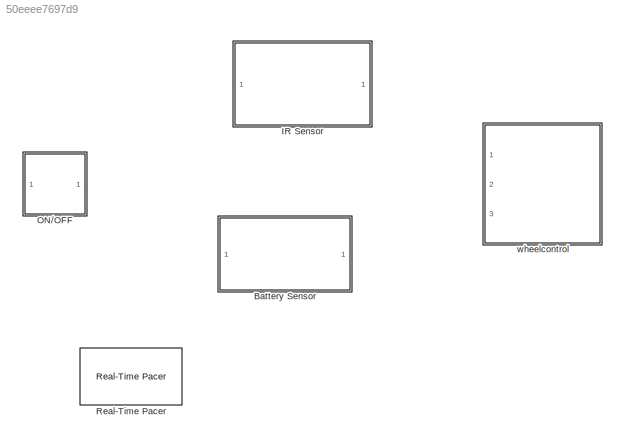
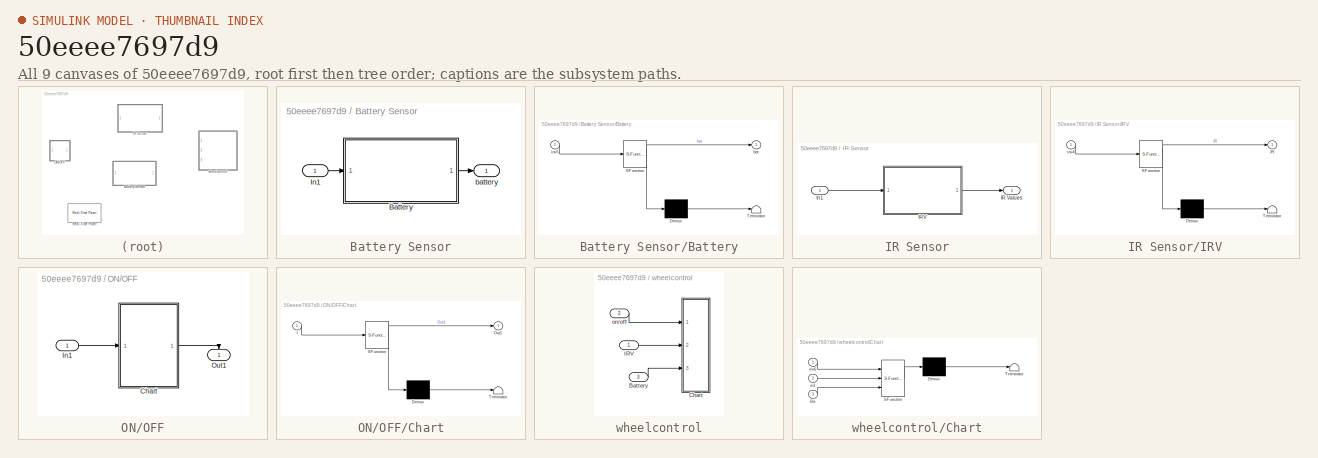
[diagram: thumbnail index - all 9 canvases of the model, root first then tree order]
MODEL slx_50eeee7697d9
KIND library
CONFIG AbsTol = auto
CONFIG EnableMultiTasking = off
CONFIG FixedStep = auto
CONFIG MaxStep = auto
CONFIG MinStep = auto
CONFIG RelTol = 1e-3
CONFIG SampleTimeConstraint = Unconstrained
CONFIG Solver = VariableStepAuto
CONFIG SolverName = VariableStepAuto
CONFIG StartTime = 0.0
CONFIG StopTime = 10.0
BLOCK [SubSystem] Battery Sensor
  Ports = [1, 1]
  RequestExecContextInheritance = off
  Variant = off
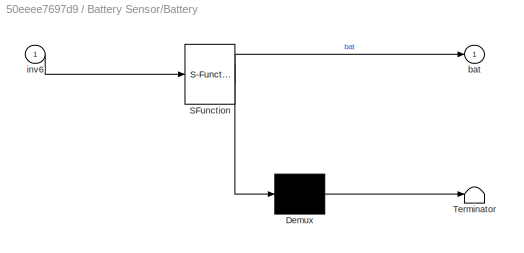
BLOCK [SubSystem] Battery Sensor/Battery
  ErrorFcn = Stateflow.Translate.translate
  PermitHierarchicalResolution = ExplicitOnly
  Ports = [1, 1]
  RequestExecContextInheritance = off
  SFBlockType = Chart
  TreatAsAtomicUnit = on
  Variant = off
BLOCK [Demux] Battery Sensor/Battery/ Demux 
  Outputs = 1
  Ports = [1, 1]
BLOCK [S-Function] Battery Sensor/Battery/ SFunction 
  EnableBusSupport = off
  FunctionName = sf_sfun
  PortCounts = [1 2]
  Ports = [1, 2]
  SFcnIsStateOwnerBlock = off
  SFunctionDeploymentMode = off
  Tag = Stateflow S-Function libraryProject2 1
BLOCK [Terminator] Battery Sensor/Battery/ Terminator 
BLOCK [Outport] Battery Sensor/Battery/bat
  IconDisplay = Port number
BLOCK [Inport] Battery Sensor/Battery/inv6
  IconDisplay = Port number
BLOCK [Inport] Battery Sensor/In1
  IconDisplay = Port number
BLOCK [Outport] Battery Sensor/battery
  IconDisplay = Port number
BLOCK [SubSystem] IR Sensor
  Ports = [1, 1]
  RequestExecContextInheritance = off
  Variant = off
BLOCK [Outport] IR Sensor/IR Values
  IconDisplay = Port number
BLOCK [SubSystem] IR Sensor/IRV
  ErrorFcn = Stateflow.Translate.translate
  PermitHierarchicalResolution = ExplicitOnly
  Ports = [1, 1]
  RequestExecContextInheritance = off
  SFBlockType = Chart
  TreatAsAtomicUnit = on
  Variant = off
BLOCK [Demux] IR Sensor/IRV/ Demux 
  Outputs = 1
  Ports = [1, 1]
BLOCK [S-Function] IR Sensor/IRV/ SFunction 
  EnableBusSupport = off
  FunctionName = sf_sfun
  PortCounts = [1 2]
  Ports = [1, 2]
  SFcnIsStateOwnerBlock = off
  SFunctionDeploymentMode = off
  Tag = Stateflow S-Function libraryProject2 8
BLOCK [Terminator] IR Sensor/IRV/ Terminator 
BLOCK [Outport] IR Sensor/IRV/IR
  IconDisplay = Port number
BLOCK [Inport] IR Sensor/IRV/inv4
  IconDisplay = Port number
BLOCK [Inport] IR Sensor/In1
  IconDisplay = Port number
BLOCK [SubSystem] ON//OFF
  Ports = [1, 1]
  RequestExecContextInheritance = off
  Variant = off
BLOCK [SubSystem] ON//OFF/Chart
  ErrorFcn = Stateflow.Translate.translate
  PermitHierarchicalResolution = ExplicitOnly
  Ports = [1, 1]
  RequestExecContextInheritance = off
  SFBlockType = Chart
  TreatAsAtomicUnit = on
  Variant = off
BLOCK [Demux] ON//OFF/Chart/ Demux 
  Outputs = 1
  Ports = [1, 1]
BLOCK [S-Function] ON//OFF/Chart/ SFunction 
  EnableBusSupport = off
  FunctionName = sf_sfun
  PortCounts = [1 2]
  Ports = [1, 2]
  SFcnIsStateOwnerBlock = off
  SFunctionDeploymentMode = off
  Tag = Stateflow S-Function libraryProject2 2
BLOCK [Terminator] ON//OFF/Chart/ Terminator 
BLOCK [Inport] ON//OFF/Chart/I
  IconDisplay = Port number
BLOCK [Outport] ON//OFF/Chart/Out1
  IconDisplay = Port number
BLOCK [Inport] ON//OFF/In1
  IconDisplay = Port number
BLOCK [Outport] ON//OFF/Out1
  IconDisplay = Port number
BLOCK [Reference] Real-Time Pacer  REF=realtime_pacer_lib/Real-Time Pacer
  Ports = []
  SourceBlock = realtime_pacer_lib/Real-Time Pacer
  SourceType = RealTime_Pacer
BLOCK [SubSystem] wheelcontrol
  Ports = [3]
  RequestExecContextInheritance = off
  Variant = off
BLOCK [Inport] wheelcontrol/Battery
  IconDisplay = Port number
  Port = 3
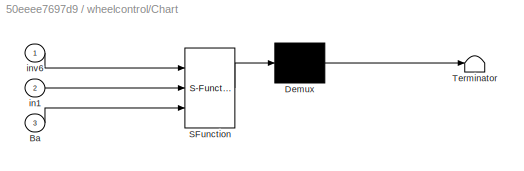
BLOCK [SubSystem] wheelcontrol/Chart
  ErrorFcn = Stateflow.Translate.translate
  PermitHierarchicalResolution = ExplicitOnly
  Ports = [3]
  RequestExecContextInheritance = off
  SFBlockType = Chart
  TreatAsAtomicUnit = on
  Variant = off
BLOCK [Demux] wheelcontrol/Chart/ Demux 
  Outputs = 1
  Ports = [1, 1]
BLOCK [S-Function] wheelcontrol/Chart/ SFunction 
  EnableBusSupport = off
  FunctionName = sf_sfun
  PortCounts = [3 1]
  Ports = [3, 1]
  SFcnIsStateOwnerBlock = off
  SFunctionDeploymentMode = off
  Tag = Stateflow S-Function libraryProject2 11
BLOCK [Terminator] wheelcontrol/Chart/ Terminator 
BLOCK [Inport] wheelcontrol/Chart/Ba
  IconDisplay = Port number
  Port = 3
BLOCK [Inport] wheelcontrol/Chart/in1
  IconDisplay = Port number
  Port = 2
BLOCK [Inport] wheelcontrol/Chart/inv6
  IconDisplay = Port number
BLOCK [Inport] wheelcontrol/IRV
  IconDisplay = Port number
BLOCK [Inport] wheelcontrol/on//off
  IconDisplay = Port number
  Port = 2
LINE Battery Sensor/Battery:1 -> Battery Sensor/battery:1
LINE Battery Sensor/In1:1 -> Battery Sensor/Battery:1
LINE IR Sensor/IRV:1 -> IR Sensor/IR Values:1
LINE IR Sensor/In1:1 -> IR Sensor/IRV:1
LINE ON//OFF/Chart:1 -> ON//OFF/Out1:1
LINE ON//OFF/In1:1 -> ON//OFF/Chart:1
LINE wheelcontrol/Battery:1 -> wheelcontrol/Chart:3
LINE wheelcontrol/IRV:1 -> wheelcontrol/Chart:2
LINE wheelcontrol/on//off:1 -> wheelcontrol/Chart:1
CHART Battery Sensor/Battery states=4 transitions=5
  STATE_LABEL 'y=battery'
  STATE_LABEL "SCRIPT:\nfunction y=battery\npersistent so5\ny=0;\ncoder.extrinsic('evalin');\ncoder.extrinsic('get');\nso5 = evalin('base','ha');\nB=0;\ncoder.extrinsic('BatteryChargeReaderRoomba_me');\nB= BatteryChargeReaderRoomba_me(so5);\ny=B;\n \n"
  STATE_LABEL 'wait\nen,du:'
  STATE_LABEL 'on\nen,du:\nbat=battery;'
  STATE_LABEL 'off\nen,du:\nbat=0;\n'
CHART ON//OFF/Chart states=4 transitions=3
  STATE_LABEL 'tcpinit'
  STATE_LABEL "SCRIPT:\nfunction tcpinit\ncoder.extrinsic('RoombaInit_wifi');\ncoder.extrinsic('assignin');\npersistent tcpobj\ntcpobj=RoombaInit_wifi('10.0.0.1','full');\nassignin('base','ha',tcpobj);\n\n\n"
  STATE_LABEL 'init\nen:\ntcpinit;\nOut1=1;\n'
  STATE_LABEL 'OFF'
  STATE_LABEL "SCRIPT:\nfunction OFF\npersistent sl\n\ncoder.extrinsic('evalin');\ncoder.extrinsic('get');\nsl = evalin('base','ha');\ncoder.extrinsic('PowerOffRoomba')\nPowerOffRoomba(sl);\n\n\n\n\n"
  STATE_LABEL 'TurnRoombaOff\nen:\nOFF;\nOut1=0;\n'
CHART IR Sensor/IRV states=3 transitions=3
  STATE_LABEL 'y= IRV'
  STATE_LABEL "SCRIPT:\nfunction y= IRV\npersistent so1\ny=zeros(1,6);\ncoder.extrinsic('evalin');\n\n    so1 = evalin('base','ha');\n\nIR = zeros(1, 6);\ncoder.extrinsic('RangeStateRoomba');\nIR = RangeStateRoomba(so1);\ny=IR;\n\n"
  STATE_LABEL 'on\nen,du:\nIR=IRV;'
  STATE_LABEL 'off\nen,du:\nIR=zeros(1,6);'
CHART wheelcontrol/Chart states=13 transitions=20
  STATE_LABEL 'on1'
  STATE_LABEL 'off\nen,du:\nAutoControl(0,0);\n'
  STATE_LABEL 'on'
  STATE_LABEL 'reverseabit\nentry:\nAutoControl(-.1,-0.1);\n'
  STATE_LABEL 'gostraight\nentry,du:\nAutoControl(0.05,0.05);\n'
  STATE_LABEL 'turnrightinplace\nentry,du:\n AutoControl(-0.2,0.2);\n'
  STATE_LABEL 'turnleftinplace\nentry,du:\n AutoControl(0.2,-0.2);\n'
  STATE_LABEL 'turnleft\nentry,du:\n AutoControl(0.2,-0.2);\n'
  STATE_LABEL 'turnright\nentry,du:\nAutoControl(-0.2,0.2);\n'
  STATE_LABEL 'turnleft1\nentry,du:\n AutoControl(.2,-0.2);'
  STATE_LABEL 'turnright1\nentry,du:\nAutoControl(-0.2,.2);\n'
  STATE_LABEL 'after(1,sec)'
  STATE_LABEL '[in1(1)>0]'
  STATE_LABEL '[in1(1)<1]'
  STATE_LABEL '[in1(2)>0]'
  STATE_LABEL '[in1(2)<1]'
  STATE_LABEL '[in1(3)>0]'
  STATE_LABEL '[in1(3)<1]'
  STATE_LABEL '[in1(4)>0]'
  STATE_LABEL '[in1(4)<1]'
  STATE_LABEL '[in1(5)>0]'
  STATE_LABEL '[in1(5)<1]'
  STATE_LABEL '[in1(6)>0]'
  STATE_LABEL '[in1(6)<1]'
  STATE_LABEL '[Ba>=3]'
  STATE_LABEL '[Ba<=2]'
  STATE_LABEL 'off\nen,du:\nAutoControl(0,0);\n'
  STATE_LABEL 'on'
  STATE_LABEL 'reverseabit\nentry:\nAutoControl(-.1,-0.1);\n'
  STATE_LABEL 'gostraight\nentry,du:\nAutoControl(0.05,0.05);\n'
  STATE_LABEL 'turnrightinplace\nentry,du:\n AutoControl(-0.2,0.2);\n'
  STATE_LABEL 'turnleftinplace\nentry,du:\n AutoControl(0.2,-0.2);\n'
  STATE_LABEL 'turnleft\nentry,du:\n AutoControl(0.2,-0.2);\n'
  STATE_LABEL 'turnright\nentry,du:\nAutoControl(-0.2,0.2);\n'
  STATE_LABEL 'turnleft1\nentry,du:\n AutoControl(.2,-0.2);'
  STATE_LABEL 'turnright1\nentry,du:\nAutoControl(-0.2,.2);\n'
  STATE_LABEL 'after(1,sec)'
  STATE_LABEL '[in1(1)>0]'
  STATE_LABEL '[in1(1)<1]'
  STATE_LABEL '[in1(2)>0]'
